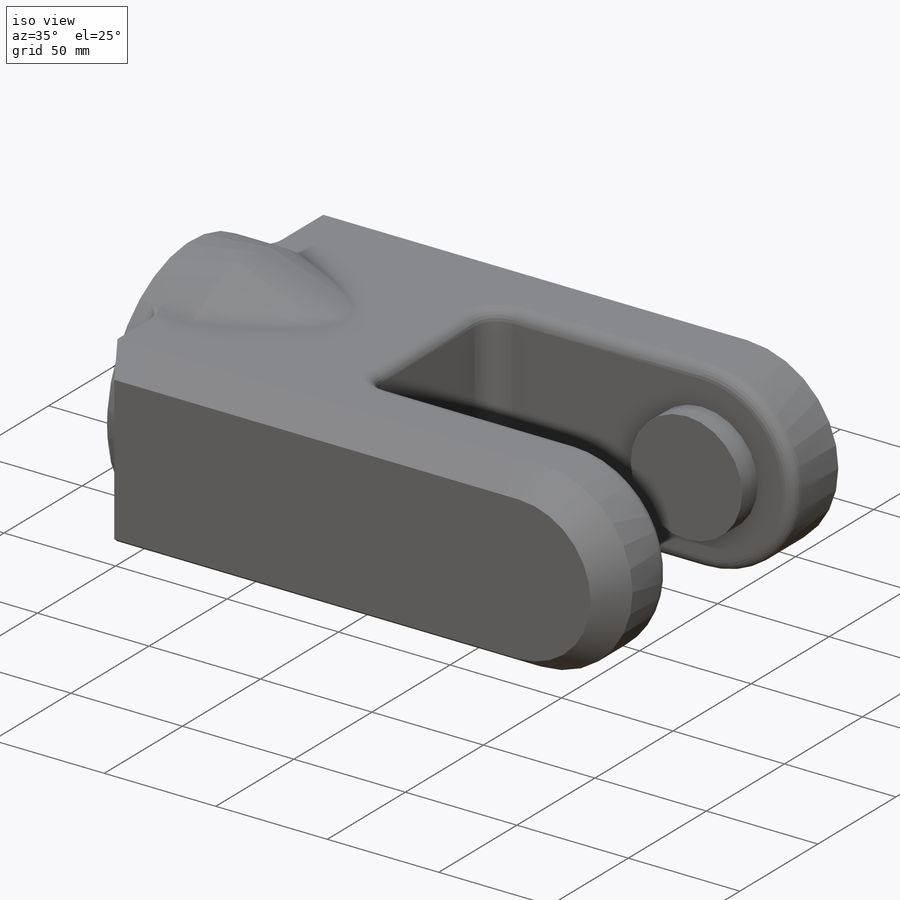
[diagram: iso view]
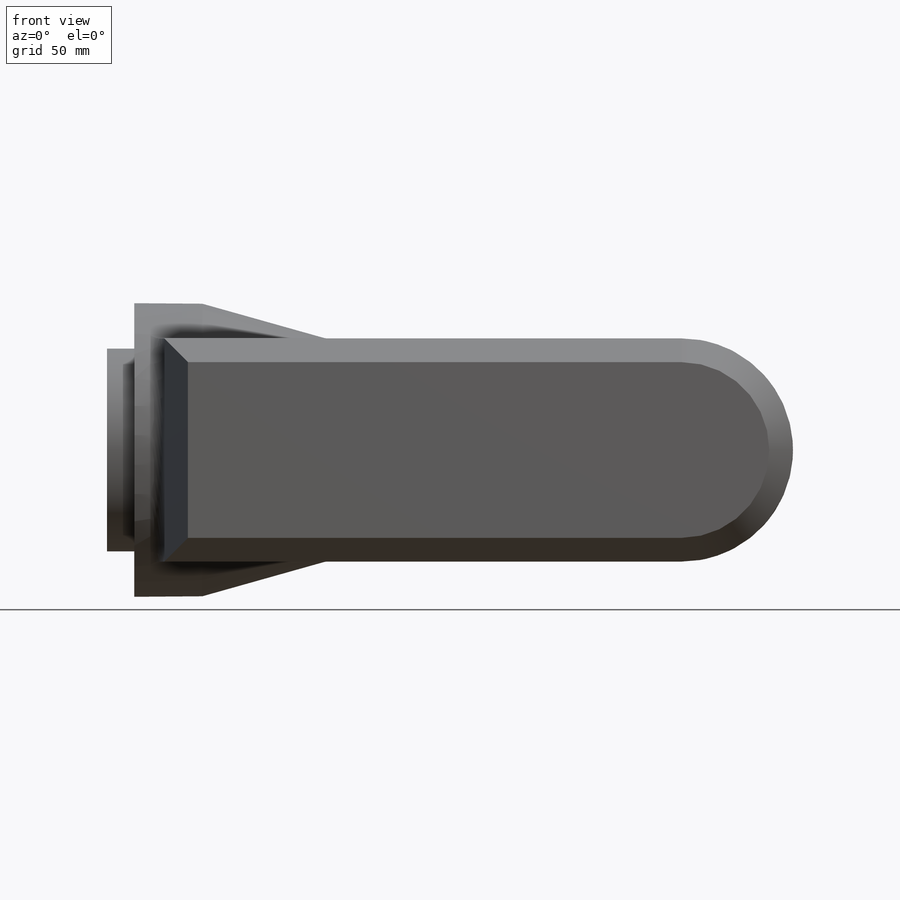
[diagram: front view]
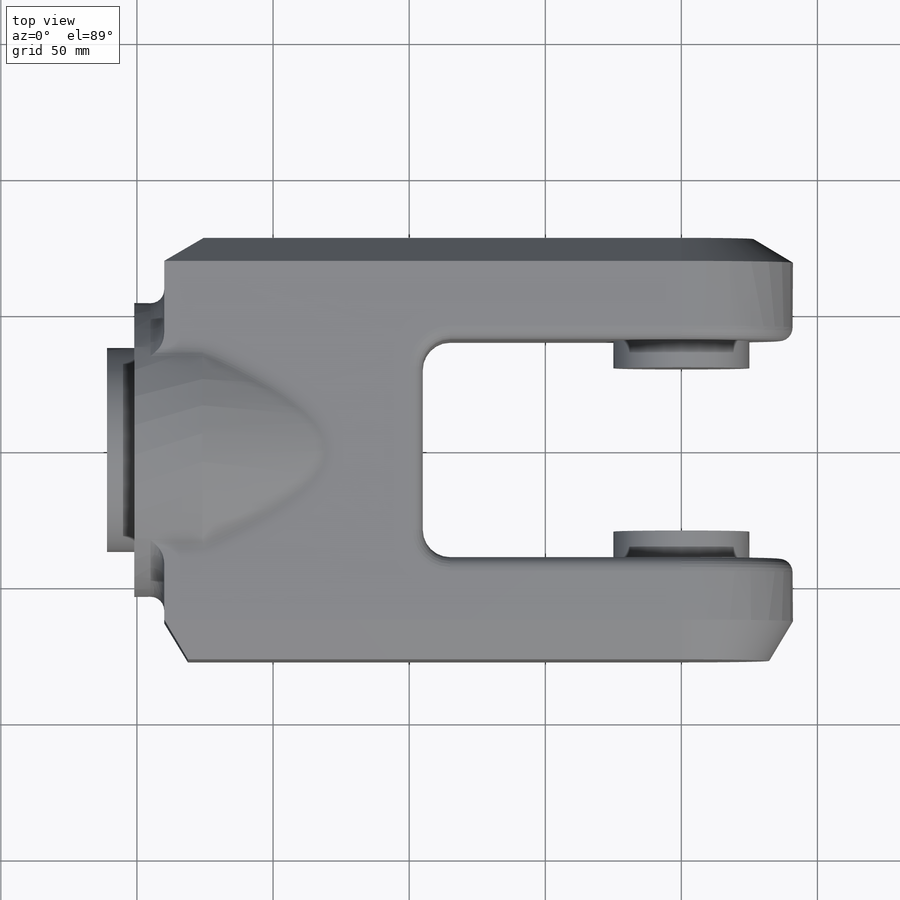
[diagram: top view]
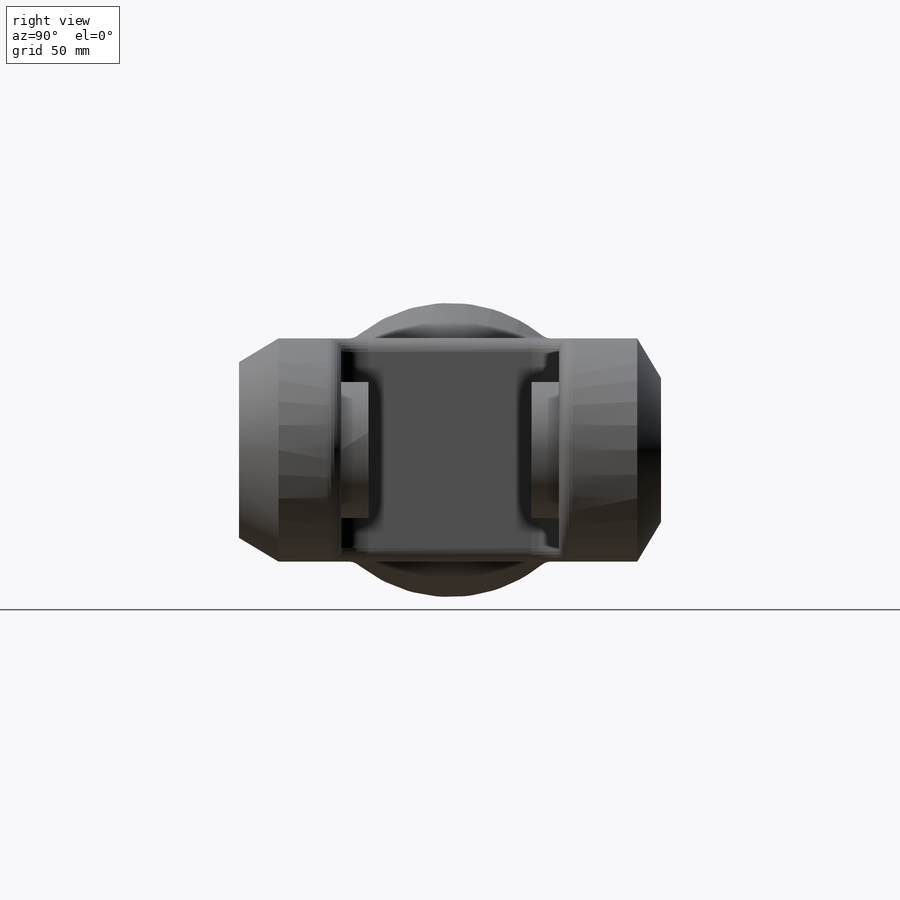
[diagram: right view]
SOLIDWORKS PART (.sldprt)
format: sldprt  version: not decoded by parser v0  size: 239,616 bytes
history: native  units: mm
features: sketch x6, extrude x4, fillet x3, material x1, chamfer x1, revolve x1, cut_extrude x1, mirror x1 (+13 scaffold rows collapsed; 1 parser-record rows omitted)
feature tree (32):
  scaffold x13  (default folders/planes/origin — collapsed)
  material  "Material <não especificado>"
  parser-record x1  (decoder bookkeeping rows leaked as tree rows — omitted from the tree; the rows remain in map.json)
  sketch  "Sketch1"  dims[Cut_Length1=82.0mm Cut_Length2=231.0mm D1=231.0mm]
  extrude  "Base"  Depth=155mm Stock_Size=155mm
  chamfer  "Chamfer1"  Distance=14.5mm Angle=31deg
  sketch  "Sketch2"  dims[D1=108.0mm]
  extrude  "Boss-Extrude1"  Depth=11mm
  sketch  "Sketch3"  dims[c1.D1=~32.464507mm c2.D1=16.0deg]
  revolve  "Boss-Revolve1"  Angle=360deg
  sketch  "Sketch4"  dims[D1=80.0mm D2=136.0mm]
  cut_extrude  "Cut-Extrude1"  [1 undecoded]
  sketch  "Sketch5"  dims[D1=~28.237947mm]
  extrude  "Extrude2"  Depth=10mm
  sketch  "Sketch6"  dims[D1=50.0mm]
  extrude  "Extrude1"  Depth=10mm
  mirror  "Mirror2"
  fillet  "Fillet1"  Radius=10mm
  fillet  "Fillet2"  Radius=5mm
  fillet  "Fillet3"  Radius=5mm
decode coverage: 15 of 17 modeling features carry decoded parameters
note: ~ marks probable driven/reference dimensions
note: 1 parameter value undecoded
note: suppression state not decoded; provenance and decode notes live in map.json
